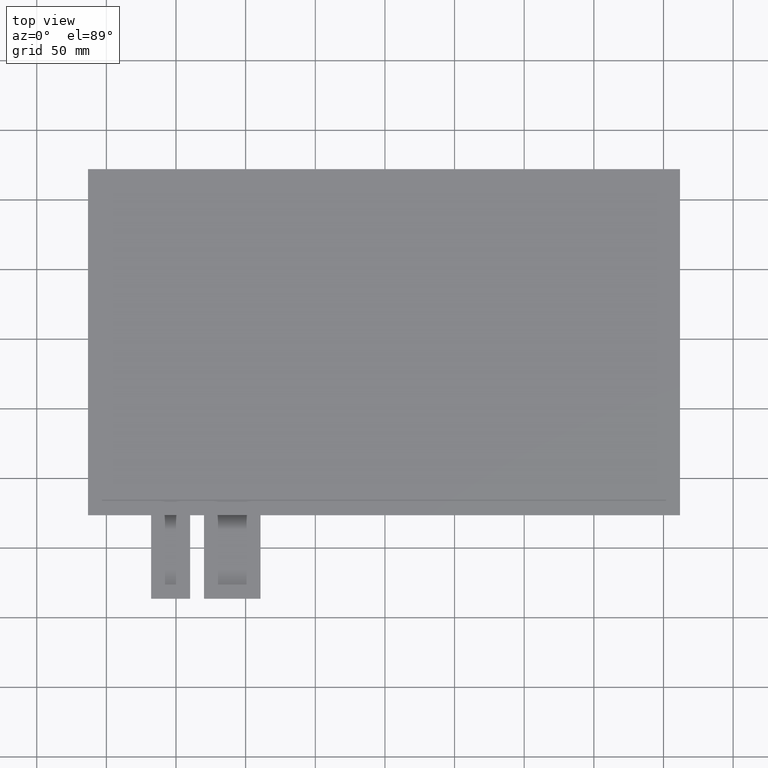
[diagram: clean part render]
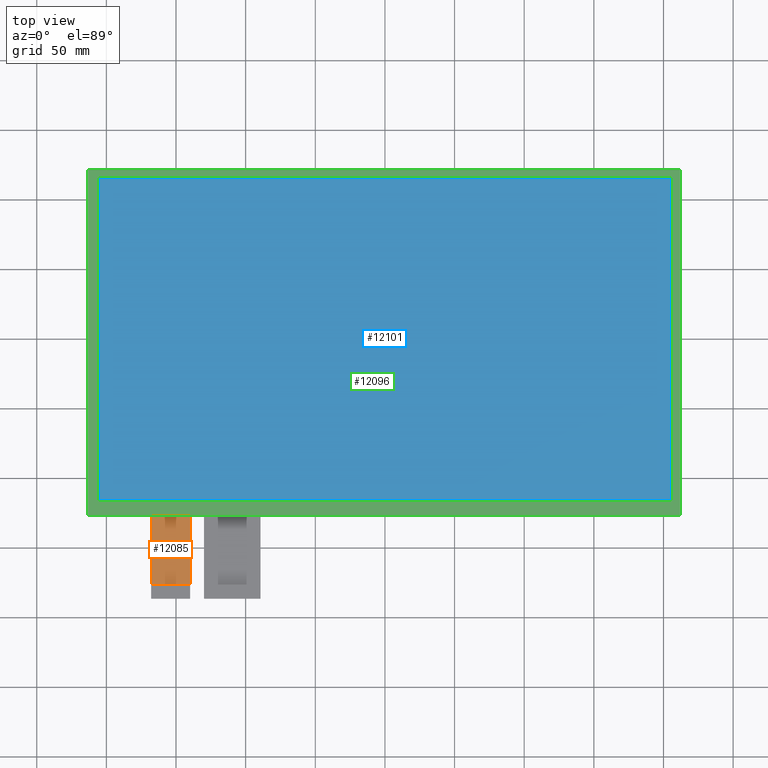
[diagram: same view with three faces highlighted in distinct colors, each labeled with its STEP entity id]
A machine part, top view with three faces highlighted in distinct colors.
Their STEP definitions:

[orange] entity #12085 — the highlighted planar face has unit normal (0, 0, 1).
#627=PLANE('',#12691);
#1205=FACE_OUTER_BOUND('',#1783,.T.);
#1783=EDGE_LOOP('',(#11433,#11434,#11435,#11436));
#3448=LINE('',#18898,#5156);
#3463=LINE('',#18928,#5171);
#3474=LINE('',#18949,#5182);
#3475=LINE('',#18951,#5183);
#5156=VECTOR('',#15470,10.);
#5171=VECTOR('',#15495,10.);
#5182=VECTOR('',#15516,10.);
#5183=VECTOR('',#15519,10.);
#6332=VERTEX_POINT('',#18895);
#6333=VERTEX_POINT('',#18897);
#6343=VERTEX_POINT('',#18927);
#6348=VERTEX_POINT('',#18947);
#8024=EDGE_CURVE('',#6333,#6332,#3448,.T.);
#8039=EDGE_CURVE('',#6332,#6343,#3463,.T.);
#8050=EDGE_CURVE('',#6343,#6348,#3474,.T.);
#8051=EDGE_CURVE('',#6333,#6348,#3475,.T.);
#11433=ORIENTED_EDGE('',*,*,#8039,.T.);
#11434=ORIENTED_EDGE('',*,*,#8050,.T.);
#11435=ORIENTED_EDGE('',*,*,#8051,.F.);
#11436=ORIENTED_EDGE('',*,*,#8024,.T.);
#12085=ADVANCED_FACE('',(#1205),#627,.T.);
#12691=AXIS2_PLACEMENT_3D('',#18950,#15517,#15518);
#15470=DIRECTION('',(5.9211894646675E-16,-1.,0.));
#15495=DIRECTION('',(1.,0.,0.));
#15516=DIRECTION('',(5.9211894646675E-16,1.,0.));
#15517=DIRECTION('center_axis',(0.,0.,1.));
#15518=DIRECTION('ref_axis',(1.,0.,0.));
#15519=DIRECTION('',(1.,8.35932630306E-17,0.));
#18895=CARTESIAN_POINT('',(-167.87,-176.53,-1.1));
#18897=CARTESIAN_POINT('',(-167.87,-126.53,-1.1));
#18898=CARTESIAN_POINT('',(-167.87,-126.53,-1.1));
#18927=CARTESIAN_POINT('',(-139.87,-176.53,-1.1));
#18928=CARTESIAN_POINT('',(-146.87,-176.53,-1.1));
#18947=CARTESIAN_POINT('',(-139.87,-126.53,-1.1));
#18949=CARTESIAN_POINT('',(-139.87,-186.53,-1.1));
#18950=CARTESIAN_POINT('Origin',(-153.87,-156.53,-1.1));
#18951=CARTESIAN_POINT('',(28.9800000000001,-126.53,-1.1));

[blue] entity #12101 — the highlighted planar face has unit normal (0, 0, 1).
#643=PLANE('',#12707);
#1221=FACE_OUTER_BOUND('',#1803,.T.);
#1803=EDGE_LOOP('',(#11513,#11514,#11515,#11516));
#3477=LINE('',#18957,#5185);
#3481=LINE('',#18965,#5189);
#3484=LINE('',#18971,#5192);
#3487=LINE('',#18976,#5195);
#5185=VECTOR('',#15525,10.);
#5189=VECTOR('',#15531,10.);
#5192=VECTOR('',#15536,10.);
#5195=VECTOR('',#15541,10.);
#6349=VERTEX_POINT('',#18955);
#6350=VERTEX_POINT('',#18956);
#6353=VERTEX_POINT('',#18964);
#6355=VERTEX_POINT('',#18970);
#8053=EDGE_CURVE('',#6349,#6350,#3477,.T.);
#8057=EDGE_CURVE('',#6353,#6349,#3481,.T.);
#8060=EDGE_CURVE('',#6355,#6353,#3484,.T.);
#8063=EDGE_CURVE('',#6350,#6355,#3487,.T.);
#11513=ORIENTED_EDGE('',*,*,#8053,.T.);
#11514=ORIENTED_EDGE('',*,*,#8063,.T.);
#11515=ORIENTED_EDGE('',*,*,#8060,.T.);
#11516=ORIENTED_EDGE('',*,*,#8057,.T.);
#12101=ADVANCED_FACE('',(#1221),#643,.T.);
#12707=AXIS2_PLACEMENT_3D('',#19028,#15587,#15588);
#15525=DIRECTION('',(1.,0.,0.));
#15531=DIRECTION('',(0.,-1.,0.));
#15536=DIRECTION('',(-1.,0.,0.));
#15541=DIRECTION('',(0.,1.,0.));
#15587=DIRECTION('center_axis',(0.,0.,1.));
#15588=DIRECTION('ref_axis',(1.,0.,0.));
#18955=CARTESIAN_POINT('',(-204.9,-115.2,0.));
#18956=CARTESIAN_POINT('',(204.9,-115.2,0.));
#18957=CARTESIAN_POINT('',(-102.785,-115.2,0.));
#18964=CARTESIAN_POINT('',(-204.9,115.2,0.));
#18965=CARTESIAN_POINT('',(-204.9,56.46,0.));
#18970=CARTESIAN_POINT('',(204.9,115.2,0.));
#18971=CARTESIAN_POINT('',(102.115,115.2,0.));
#18976=CARTESIAN_POINT('',(204.9,-58.74,0.));
#19028=CARTESIAN_POINT('Origin',(-0.669999999999984,-2.27999999999998,0.));

[green] entity #12096 — the highlighted planar face has unit normal (0, 0, 1).
#68=FACE_BOUND('',#1796,.T.);
#638=PLANE('',#12702);
#1216=FACE_OUTER_BOUND('',#1795,.T.);
#1795=EDGE_LOOP('',(#11481,#11482,#11483,#11484));
#1796=EDGE_LOOP('',(#11485,#11486,#11487,#11488));
#3489=LINE('',#18981,#5197);
#3493=LINE('',#18989,#5201);
#3496=LINE('',#18995,#5204);
#3499=LINE('',#19000,#5207);
#3501=LINE('',#19006,#5209);
#3502=LINE('',#19008,#5210);
#3503=LINE('',#19010,#5211);
#3504=LINE('',#19011,#5212);
#5197=VECTOR('',#15545,10.);
#5201=VECTOR('',#15551,10.);
#5204=VECTOR('',#15556,10.);
#5207=VECTOR('',#15561,10.);
#5209=VECTOR('',#15567,10.);
#5210=VECTOR('',#15568,10.);
#5211=VECTOR('',#15569,10.);
#5212=VECTOR('',#15570,10.);
#6357=VERTEX_POINT('',#18979);
#6358=VERTEX_POINT('',#18980);
#6361=VERTEX_POINT('',#18988);
#6363=VERTEX_POINT('',#18994);
#6365=VERTEX_POINT('',#19004);
#6366=VERTEX_POINT('',#19005);
#6367=VERTEX_POINT('',#19007);
#6368=VERTEX_POINT('',#19009);
#8065=EDGE_CURVE('',#6357,#6358,#3489,.T.);
#8069=EDGE_CURVE('',#6361,#6357,#3493,.T.);
#8072=EDGE_CURVE('',#6363,#6361,#3496,.T.);
#8075=EDGE_CURVE('',#6358,#6363,#3499,.T.);
#8077=EDGE_CURVE('',#6365,#6366,#3501,.T.);
#8078=EDGE_CURVE('',#6366,#6367,#3502,.T.);
#8079=EDGE_CURVE('',#6367,#6368,#3503,.T.);
#8080=EDGE_CURVE('',#6368,#6365,#3504,.T.);
#11481=ORIENTED_EDGE('',*,*,#8077,.T.);
#11482=ORIENTED_EDGE('',*,*,#8078,.T.);
#11483=ORIENTED_EDGE('',*,*,#8079,.T.);
#11484=ORIENTED_EDGE('',*,*,#8080,.T.);
#11485=ORIENTED_EDGE('',*,*,#8065,.T.);
#11486=ORIENTED_EDGE('',*,*,#8075,.T.);
#11487=ORIENTED_EDGE('',*,*,#8072,.T.);
#11488=ORIENTED_EDGE('',*,*,#8069,.T.);
#12096=ADVANCED_FACE('',(#1216,#68),#638,.T.);
#12702=AXIS2_PLACEMENT_3D('',#19003,#15565,#15566);
#15545=DIRECTION('',(-3.0365074177782E-16,1.,0.));
#15551=DIRECTION('',(-1.,-1.71877778364804E-16,0.));
#15556=DIRECTION('',(0.,-1.,0.));
#15561=DIRECTION('',(1.,0.,0.));
#15565=DIRECTION('center_axis',(0.,0.,1.));
#15566=DIRECTION('ref_axis',(1.,0.,0.));
#15567=DIRECTION('',(-1.,0.,0.));
#15568=DIRECTION('',(2.8593269044672E-16,-1.,0.));
#15569=DIRECTION('',(1.,8.35932630306E-17,0.));
#15570=DIRECTION('',(1.4296634522336E-16,1.,0.));
#18979=CARTESIAN_POINT('',(-206.7,-117.,0.));
#18980=CARTESIAN_POINT('',(-206.7,117.,0.));
#18981=CARTESIAN_POINT('',(-206.7,-59.64,0.));
#18988=CARTESIAN_POINT('',(206.7,-117.,0.));
#18989=CARTESIAN_POINT('',(103.015,-117.,0.));
#18994=CARTESIAN_POINT('',(206.7,117.,0.));
#18995=CARTESIAN_POINT('',(206.7,57.36,0.));
#19000=CARTESIAN_POINT('',(-103.685,117.,0.));
#19003=CARTESIAN_POINT('Origin',(-0.669999999999984,-2.27999999999998,0.));
#19004=CARTESIAN_POINT('',(211.83,121.97,0.));
#19005=CARTESIAN_POINT('',(-213.17,121.97,0.));
#19006=CARTESIAN_POINT('',(211.83,121.97,0.));
#19007=CARTESIAN_POINT('',(-213.17,-126.53,0.));
#19008=CARTESIAN_POINT('',(-213.17,121.97,0.));
#19009=CARTESIAN_POINT('',(211.83,-126.53,0.));
#19010=CARTESIAN_POINT('',(-213.17,-126.53,0.));
#19011=CARTESIAN_POINT('',(211.83,-126.53,0.));